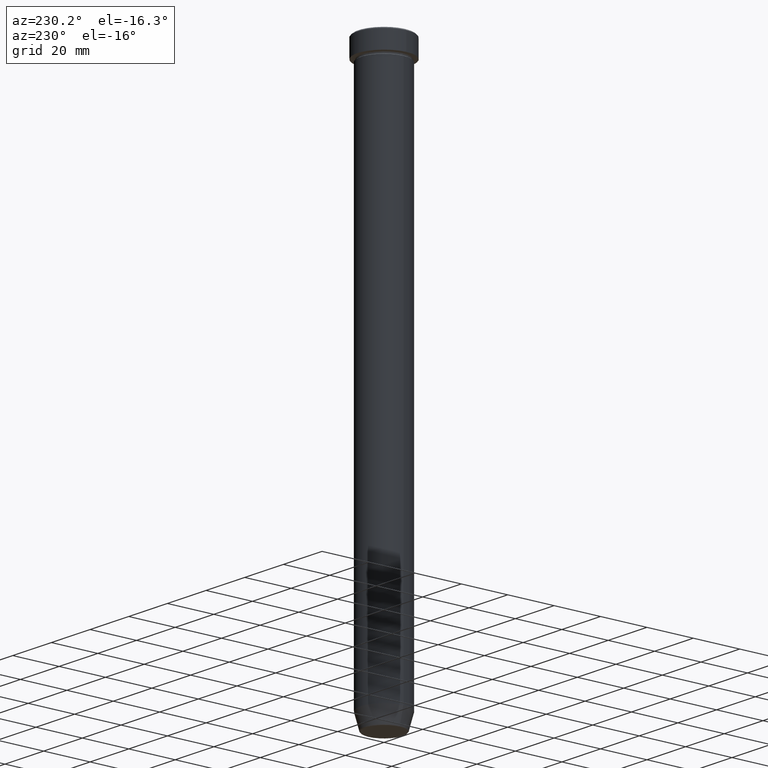
[diagram: clean part render]
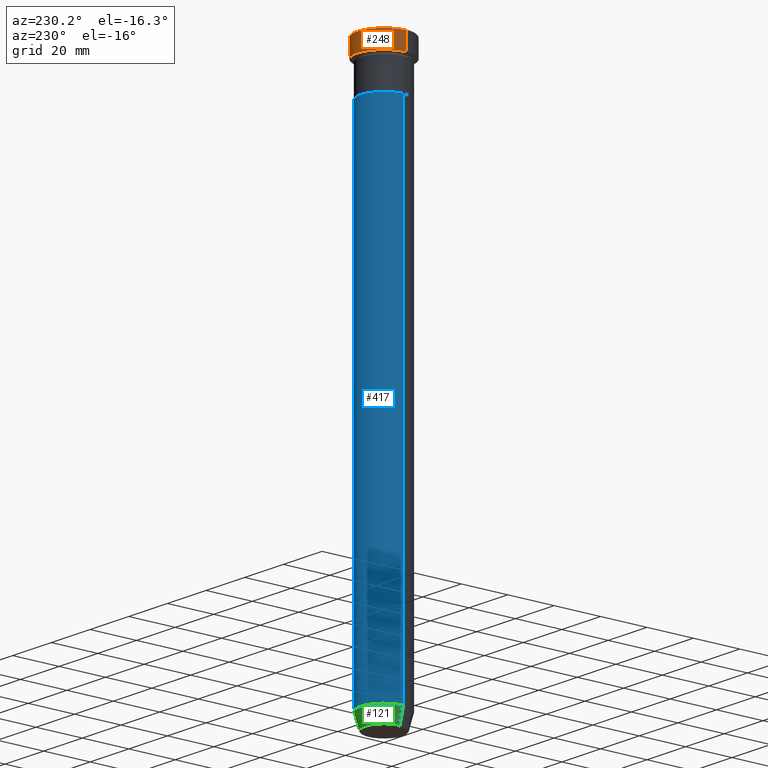
[diagram: same view with three faces highlighted in distinct colors, each labeled with its STEP entity id]
A machine part, auxiliary view with three faces highlighted in distinct colors.
Their STEP definitions:

[orange] entity #248 — the highlighted cylindrical surface (edge-blend (fillet) strip) has radius 11.5 mm, axis along (-0, -0, 1).
#17 = EDGE_CURVE ( 'NONE', #485, #552, #137, .T. ) ;
#29 = DIRECTION ( 'NONE',  ( -0.000000000000000000, -0.000000000000000000, 1.000000000000000000 ) ) ;
#38 = DIRECTION ( 'NONE',  ( 1.000000000000000000, 0.000000000000000000, 0.000000000000000000 ) ) ;
#49 = CARTESIAN_POINT ( 'NONE',  ( -11.50000000000000000, 1.408343819019456176E-15, -8.000000000000000000 ) ) ;
#73 = ORIENTED_EDGE ( 'NONE', *, *, #571, .T. ) ;
#76 = EDGE_LOOP ( 'NONE', ( #130, #431, #73, #261 ) ) ;
#81 = LINE ( 'NONE', #177, #558 ) ;
#84 = DIRECTION ( 'NONE',  ( 1.000000000000000000, 0.000000000000000000, 0.000000000000000000 ) ) ;
#92 = DIRECTION ( 'NONE',  ( 1.000000000000000000, 0.000000000000000000, 0.000000000000000000 ) ) ;
#103 = CARTESIAN_POINT ( 'NONE',  ( -11.50000000000000000, 1.408343819019456176E-15, 0.000000000000000000 ) ) ;
#126 = AXIS2_PLACEMENT_3D ( 'NONE', #453, #29, #84 ) ;
#130 = ORIENTED_EDGE ( 'NONE', *, *, #17, .T. ) ;
#136 = FACE_OUTER_BOUND ( 'NONE', #76, .T. ) ;
#137 = CIRCLE ( 'NONE', #126, 11.50000000000000000 ) ;
#142 = CARTESIAN_POINT ( 'NONE',  ( 0.000000000000000000, 0.000000000000000000, 0.000000000000000000 ) ) ;
#151 = VERTEX_POINT ( 'NONE', #547 ) ;
#177 = CARTESIAN_POINT ( 'NONE',  ( 11.50000000000000000, 0.000000000000000000, 0.000000000000000000 ) ) ;
#225 = DIRECTION ( 'NONE',  ( 0.000000000000000000, 0.000000000000000000, -1.000000000000000000 ) ) ;
#248 = ADVANCED_FACE ( 'NONE', ( #136 ), #556, .T. ) ;
#260 = CARTESIAN_POINT ( 'NONE',  ( 11.50000000000000000, 0.000000000000000000, -8.000000000000000000 ) ) ;
#261 = ORIENTED_EDGE ( 'NONE', *, *, #550, .F. ) ;
#287 = DIRECTION ( 'NONE',  ( -0.000000000000000000, -0.000000000000000000, 1.000000000000000000 ) ) ;
#296 = EDGE_CURVE ( 'NONE', #552, #151, #426, .T. ) ;
#310 = AXIS2_PLACEMENT_3D ( 'NONE', #365, #225, #38 ) ;
#315 = VECTOR ( 'NONE', #287, 1000.000000000000000 ) ;
#342 = VERTEX_POINT ( 'NONE', #434 ) ;
#365 = CARTESIAN_POINT ( 'NONE',  ( 0.000000000000000000, 0.000000000000000000, -0.5000000000000073275 ) ) ;
#426 = LINE ( 'NONE', #103, #315 ) ;
#431 = ORIENTED_EDGE ( 'NONE', *, *, #296, .T. ) ;
#434 = CARTESIAN_POINT ( 'NONE',  ( 11.50000000000000000, 0.000000000000000000, -0.5000000000000073275 ) ) ;
#445 = AXIS2_PLACEMENT_3D ( 'NONE', #142, #507, #92 ) ;
#453 = CARTESIAN_POINT ( 'NONE',  ( 0.000000000000000000, 0.000000000000000000, -8.000000000000000000 ) ) ;
#464 = DIRECTION ( 'NONE',  ( -0.000000000000000000, -0.000000000000000000, 1.000000000000000000 ) ) ;
#485 = VERTEX_POINT ( 'NONE', #260 ) ;
#507 = DIRECTION ( 'NONE',  ( -0.000000000000000000, -0.000000000000000000, 1.000000000000000000 ) ) ;
#523 = CIRCLE ( 'NONE', #310, 11.50000000000000000 ) ;
#547 = CARTESIAN_POINT ( 'NONE',  ( -11.50000000000000000, 1.408343819019456176E-15, -0.5000000000000073275 ) ) ;
#550 = EDGE_CURVE ( 'NONE', #485, #342, #81, .T. ) ;
#552 = VERTEX_POINT ( 'NONE', #49 ) ;
#556 = CYLINDRICAL_SURFACE ( 'NONE', #445, 11.50000000000000000 ) ;
#558 = VECTOR ( 'NONE', #464, 1000.000000000000000 ) ;
#571 = EDGE_CURVE ( 'NONE', #151, #342, #523, .T. ) ;

[blue] entity #417 — the highlighted cylindrical surface (edge-blend (fillet) strip) has radius 10 mm, axis along (-0, -0, 1).
#64 = DIRECTION ( 'NONE',  ( 1.000000000000000000, 0.000000000000000000, 0.000000000000000000 ) ) ;
#72 = DIRECTION ( 'NONE',  ( -0.000000000000000000, -0.000000000000000000, 1.000000000000000000 ) ) ;
#79 = CIRCLE ( 'NONE', #356, 10.00000000000000000 ) ;
#109 = ORIENTED_EDGE ( 'NONE', *, *, #483, .T. ) ;
#125 = EDGE_LOOP ( 'NONE', ( #536, #109, #259, #532 ) ) ;
#155 = CIRCLE ( 'NONE', #180, 9.999999999999998224 ) ;
#156 = CARTESIAN_POINT ( 'NONE',  ( 0.000000000000000000, 0.000000000000000000, -232.9999999999999716 ) ) ;
#158 = DIRECTION ( 'NONE',  ( -0.000000000000000000, -0.000000000000000000, 1.000000000000000000 ) ) ;
#180 = AXIS2_PLACEMENT_3D ( 'NONE', #156, #525, #64 ) ;
#187 = CARTESIAN_POINT ( 'NONE',  ( 9.999999999999998224, 0.000000000000000000, -232.9999999999999716 ) ) ;
#204 = CARTESIAN_POINT ( 'NONE',  ( 10.00000000000000000, 0.000000000000000000, -22.00000000000000000 ) ) ;
#212 = DIRECTION ( 'NONE',  ( 1.000000000000000000, 0.000000000000000000, 0.000000000000000000 ) ) ;
#214 = VERTEX_POINT ( 'NONE', #589 ) ;
#216 = VERTEX_POINT ( 'NONE', #187 ) ;
#251 = CARTESIAN_POINT ( 'NONE',  ( 0.000000000000000000, 0.000000000000000000, -22.00000000000000000 ) ) ;
#258 = DIRECTION ( 'NONE',  ( -0.000000000000000000, -0.000000000000000000, 1.000000000000000000 ) ) ;
#259 = ORIENTED_EDGE ( 'NONE', *, *, #330, .F. ) ;
#262 = FACE_OUTER_BOUND ( 'NONE', #125, .T. ) ;
#271 = EDGE_CURVE ( 'NONE', #216, #214, #155, .T. ) ;
#281 = EDGE_CURVE ( 'NONE', #216, #391, #562, .T. ) ;
#290 = DIRECTION ( 'NONE',  ( 1.000000000000000000, 0.000000000000000000, 0.000000000000000000 ) ) ;
#303 = LINE ( 'NONE', #446, #475 ) ;
#304 = VERTEX_POINT ( 'NONE', #390 ) ;
#330 = EDGE_CURVE ( 'NONE', #391, #304, #79, .T. ) ;
#341 = DIRECTION ( 'NONE',  ( -0.000000000000000000, -0.000000000000000000, 1.000000000000000000 ) ) ;
#356 = AXIS2_PLACEMENT_3D ( 'NONE', #251, #341, #290 ) ;
#390 = CARTESIAN_POINT ( 'NONE',  ( -10.00000000000000000, 1.224646799147353256E-15, -22.00000000000000000 ) ) ;
#391 = VERTEX_POINT ( 'NONE', #204 ) ;
#393 = CARTESIAN_POINT ( 'NONE',  ( 0.000000000000000000, 0.000000000000000000, 0.000000000000000000 ) ) ;
#417 = ADVANCED_FACE ( 'NONE', ( #262 ), #448, .T. ) ;
#446 = CARTESIAN_POINT ( 'NONE',  ( -9.999999999999998224, 1.224646799147353059E-15, 0.000000000000000000 ) ) ;
#448 = CYLINDRICAL_SURFACE ( 'NONE', #454, 9.999999999999998224 ) ;
#454 = AXIS2_PLACEMENT_3D ( 'NONE', #393, #258, #212 ) ;
#475 = VECTOR ( 'NONE', #72, 1000.000000000000000 ) ;
#483 = EDGE_CURVE ( 'NONE', #214, #304, #303, .T. ) ;
#516 = CARTESIAN_POINT ( 'NONE',  ( 9.999999999999998224, 0.000000000000000000, 0.000000000000000000 ) ) ;
#525 = DIRECTION ( 'NONE',  ( -0.000000000000000000, -0.000000000000000000, 1.000000000000000000 ) ) ;
#532 = ORIENTED_EDGE ( 'NONE', *, *, #281, .F. ) ;
#536 = ORIENTED_EDGE ( 'NONE', *, *, #271, .T. ) ;
#540 = VECTOR ( 'NONE', #158, 1000.000000000000000 ) ;
#562 = LINE ( 'NONE', #516, #540 ) ;
#589 = CARTESIAN_POINT ( 'NONE',  ( -9.999999999999998224, 1.224646799147353059E-15, -232.9999999999999716 ) ) ;

[green] entity #121 — the highlighted conical surface has half-angle 15 deg.
#13 = ORIENTED_EDGE ( 'NONE', *, *, #271, .F. ) ;
#16 = VERTEX_POINT ( 'NONE', #165 ) ;
#44 = FACE_OUTER_BOUND ( 'NONE', #48, .T. ) ;
#48 = EDGE_LOOP ( 'NONE', ( #568, #288, #13, #233 ) ) ;
#64 = DIRECTION ( 'NONE',  ( 1.000000000000000000, 0.000000000000000000, 0.000000000000000000 ) ) ;
#70 = DIRECTION ( 'NONE',  ( -0.2588190451025209060, 3.169619151431766790E-17, 0.9659258262890682012 ) ) ;
#93 = VECTOR ( 'NONE', #457, 1000.000000000000000 ) ;
#99 = CARTESIAN_POINT ( 'NONE',  ( 8.223655072137191269, 0.000000000000000000, -239.6294095225512706 ) ) ;
#121 = ADVANCED_FACE ( 'NONE', ( #44 ), #150, .T. ) ;
#139 = CARTESIAN_POINT ( 'NONE',  ( 8.124355652982137244, 0.000000000000000000, -240.0000000000000000 ) ) ;
#147 = EDGE_CURVE ( 'NONE', #153, #16, #517, .T. ) ;
#150 = CONICAL_SURFACE ( 'NONE', #554, 8.124355652982137244, 0.2617993877991495744 ) ;
#153 = VERTEX_POINT ( 'NONE', #99 ) ;
#155 = CIRCLE ( 'NONE', #180, 9.999999999999998224 ) ;
#156 = CARTESIAN_POINT ( 'NONE',  ( 0.000000000000000000, 0.000000000000000000, -232.9999999999999716 ) ) ;
#161 = AXIS2_PLACEMENT_3D ( 'NONE', #465, #374, #409 ) ;
#165 = CARTESIAN_POINT ( 'NONE',  ( -8.223655072137191269, 1.115877042642912251E-15, -239.6294095225512706 ) ) ;
#179 = DIRECTION ( 'NONE',  ( -0.000000000000000000, -0.000000000000000000, 1.000000000000000000 ) ) ;
#180 = AXIS2_PLACEMENT_3D ( 'NONE', #156, #525, #64 ) ;
#187 = CARTESIAN_POINT ( 'NONE',  ( 9.999999999999998224, 0.000000000000000000, -232.9999999999999716 ) ) ;
#214 = VERTEX_POINT ( 'NONE', #589 ) ;
#216 = VERTEX_POINT ( 'NONE', #187 ) ;
#221 = VECTOR ( 'NONE', #70, 1000.000000000000000 ) ;
#223 = EDGE_CURVE ( 'NONE', #153, #216, #270, .T. ) ;
#232 = DIRECTION ( 'NONE',  ( 1.000000000000000000, 0.000000000000000000, 0.000000000000000000 ) ) ;
#233 = ORIENTED_EDGE ( 'NONE', *, *, #223, .F. ) ;
#270 = LINE ( 'NONE', #139, #93 ) ;
#271 = EDGE_CURVE ( 'NONE', #216, #214, #155, .T. ) ;
#288 = ORIENTED_EDGE ( 'NONE', *, *, #362, .T. ) ;
#362 = EDGE_CURVE ( 'NONE', #16, #214, #383, .T. ) ;
#371 = CARTESIAN_POINT ( 'NONE',  ( 0.000000000000000000, 0.000000000000000000, -240.0000000000000000 ) ) ;
#374 = DIRECTION ( 'NONE',  ( -0.000000000000000000, -0.000000000000000000, 1.000000000000000000 ) ) ;
#383 = LINE ( 'NONE', #484, #221 ) ;
#409 = DIRECTION ( 'NONE',  ( -1.000000000000000000, 0.000000000000000000, 0.000000000000000000 ) ) ;
#457 = DIRECTION ( 'NONE',  ( 0.2588190451025209060, 0.000000000000000000, 0.9659258262890682012 ) ) ;
#465 = CARTESIAN_POINT ( 'NONE',  ( 0.000000000000000000, 0.000000000000000000, -239.6294095225512706 ) ) ;
#484 = CARTESIAN_POINT ( 'NONE',  ( -8.124355652982137244, 9.949466145559278555E-16, -240.0000000000000000 ) ) ;
#517 = CIRCLE ( 'NONE', #161, 8.223655072137191269 ) ;
#525 = DIRECTION ( 'NONE',  ( -0.000000000000000000, -0.000000000000000000, 1.000000000000000000 ) ) ;
#554 = AXIS2_PLACEMENT_3D ( 'NONE', #371, #179, #232 ) ;
#568 = ORIENTED_EDGE ( 'NONE', *, *, #147, .T. ) ;
#589 = CARTESIAN_POINT ( 'NONE',  ( -9.999999999999998224, 1.224646799147353059E-15, -232.9999999999999716 ) ) ;